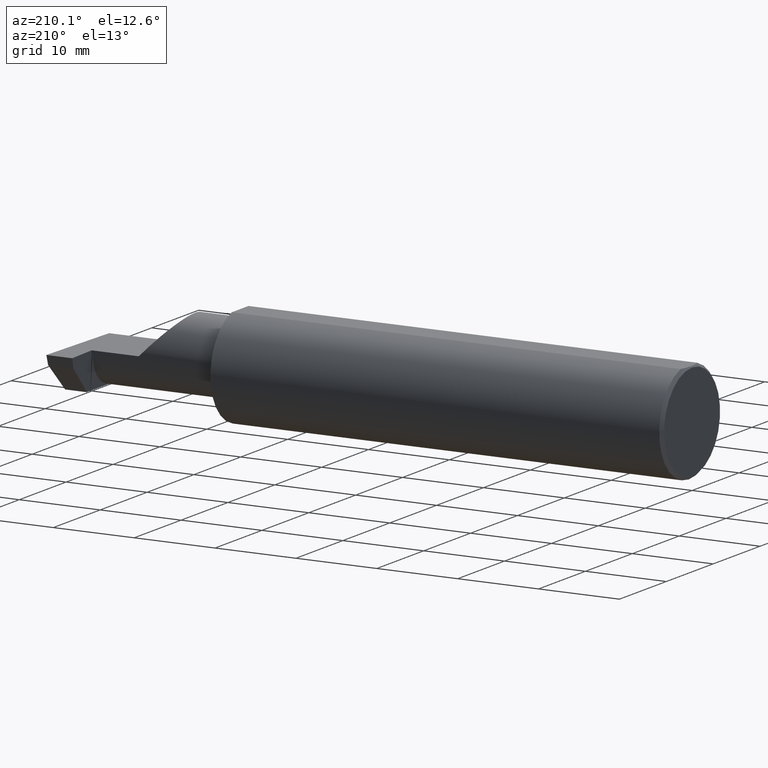
[diagram: clean part render]
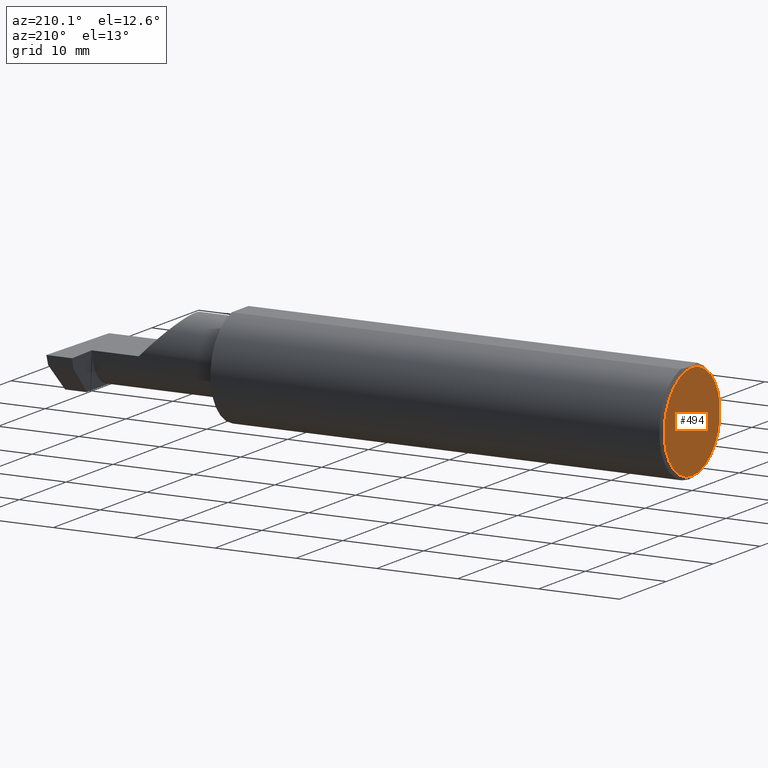
[diagram: same view with one face highlighted and labeled with its STEP entity id]
A machine part, auxiliary view. The second image highlights one B-rep face of the part: STEP entity #494.
In plain terms, the highlighted planar face has unit normal (1, 0, 0).
Its self-contained STEP definition (entity closure, byte-faithful):
#50 = CARTESIAN_POINT ( 'NONE',  ( 0.000000000000000000, 0.000000000000000000, 0.000000000000000000 ) ) ;
#96 = CARTESIAN_POINT ( 'NONE',  ( 0.000000000000000000, 2.967931517733610643E-17, 0.2348499999999999754 ) ) ;
#104 = ORIENTED_EDGE ( 'NONE', *, *, #636, .T. ) ;
#114 = FACE_OUTER_BOUND ( 'NONE', #297, .T. ) ;
#140 = DIRECTION ( 'NONE',  ( 0.000000000000000000, 0.000000000000000000, 1.000000000000000000 ) ) ;
#145 = DIRECTION ( 'NONE',  ( 0.000000000000000000, 0.000000000000000000, 1.000000000000000000 ) ) ;
#207 = CARTESIAN_POINT ( 'NONE',  ( 0.000000000000000000, 0.000000000000000000, 0.000000000000000000 ) ) ;
#210 = DIRECTION ( 'NONE',  ( -1.000000000000000000, -0.000000000000000000, -0.000000000000000000 ) ) ;
#259 = EDGE_CURVE ( 'NONE', #776, #759, #547, .T. ) ;
#293 = ORIENTED_EDGE ( 'NONE', *, *, #259, .T. ) ;
#297 = EDGE_LOOP ( 'NONE', ( #293, #104 ) ) ;
#318 = AXIS2_PLACEMENT_3D ( 'NONE', #334, #210, #140 ) ;
#334 = CARTESIAN_POINT ( 'NONE',  ( 0.000000000000000000, 0.000000000000000000, 0.000000000000000000 ) ) ;
#380 = PLANE ( 'NONE',  #397 ) ;
#397 = AXIS2_PLACEMENT_3D ( 'NONE', #50, #682, #670 ) ;
#422 = CIRCLE ( 'NONE', #318, 0.2348499999999999754 ) ;
#452 = DIRECTION ( 'NONE',  ( -1.000000000000000000, -0.000000000000000000, -0.000000000000000000 ) ) ;
#494 = ADVANCED_FACE ( 'NONE', ( #114 ), #380, .F. ) ;
#547 = CIRCLE ( 'NONE', #666, 0.2348499999999999754 ) ;
#582 = CARTESIAN_POINT ( 'NONE',  ( 0.000000000000000000, 0.000000000000000000, -0.2348499999999999754 ) ) ;
#636 = EDGE_CURVE ( 'NONE', #759, #776, #422, .T. ) ;
#666 = AXIS2_PLACEMENT_3D ( 'NONE', #207, #452, #145 ) ;
#670 = DIRECTION ( 'NONE',  ( 0.000000000000000000, 0.000000000000000000, -1.000000000000000000 ) ) ;
#682 = DIRECTION ( 'NONE',  ( 1.000000000000000000, 0.000000000000000000, 0.000000000000000000 ) ) ;
#759 = VERTEX_POINT ( 'NONE', #96 ) ;
#776 = VERTEX_POINT ( 'NONE', #582 ) ;